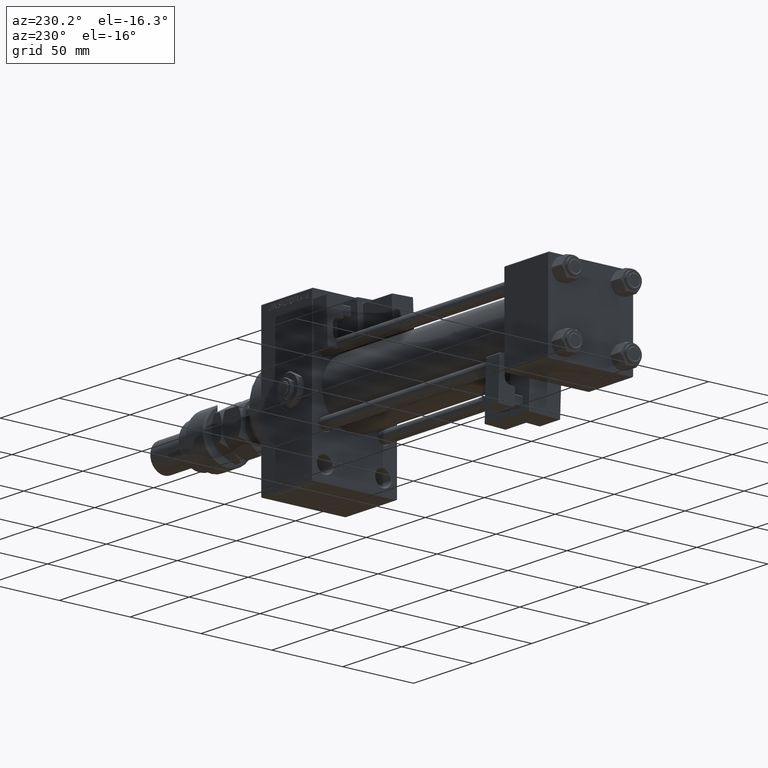
[diagram: clean part render]
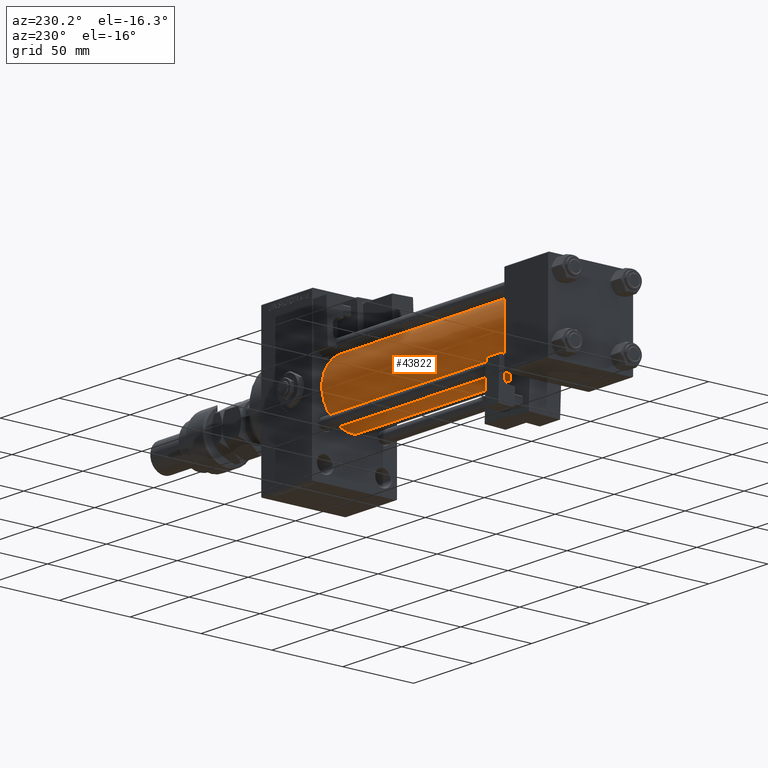
[diagram: same view with one face highlighted and labeled with its STEP entity id]
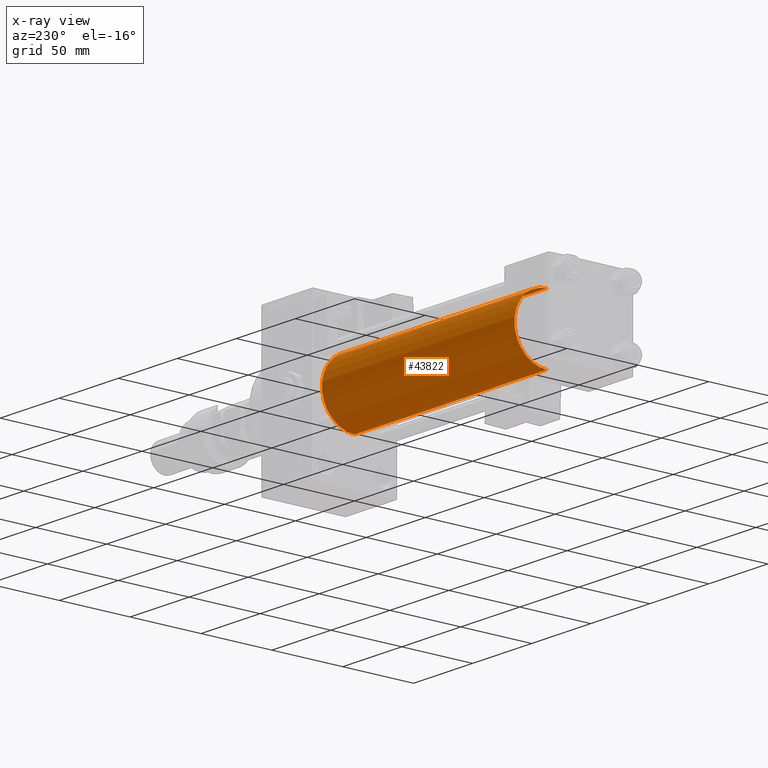
[diagram: x-ray of the same camera — body ghosted, the highlighted face saturated]
A machine part, auxiliary view. The second image highlights one B-rep face of the part: STEP entity #43822.
The next image is the same camera in x-ray: the body ghosted, the highlighted face saturated — about 0% of this face is hidden behind the body in this view.
In plain terms, the highlighted cylindrical surface (partial cylindrical patch) has radius 23 mm, axis along (-1, -0, -0).
Its self-contained STEP definition (entity closure, byte-faithful):
#299 = DIRECTION ( 'NONE',  ( 1.000000000000000000, 0.000000000000000000, 0.000000000000000000 ) ) ;
#700 = LINE ( 'NONE', #25875, #25865 ) ;
#879 = EDGE_CURVE ( 'NONE', #9035, #38479, #37683, .T. ) ;
#1359 = DIRECTION ( 'NONE',  ( 0.000000000000000000, 0.000000000000000000, -1.000000000000000000 ) ) ;
#3482 = AXIS2_PLACEMENT_3D ( 'NONE', #38828, #299, #1359 ) ;
#3650 = ORIENTED_EDGE ( 'NONE', *, *, #16435, .T. ) ;
#5085 = CARTESIAN_POINT ( 'NONE',  ( 37.00000000000000711, 2.146024240737016609E-16, -23.00000000000000000 ) ) ;
#5581 = ORIENTED_EDGE ( 'NONE', *, *, #29843, .F. ) ;
#5807 = CYLINDRICAL_SURFACE ( 'NONE', #45225, 23.00000000000000000 ) ;
#9035 = VERTEX_POINT ( 'NONE', #52659 ) ;
#9699 = CARTESIAN_POINT ( 'NONE',  ( 37.00000000000000711, -2.602085213965210642E-15, 23.00000000000000000 ) ) ;
#11944 = EDGE_LOOP ( 'NONE', ( #5581, #3650, #53807, #27750 ) ) ;
#11993 = DIRECTION ( 'NONE',  ( -1.000000000000000000, -0.000000000000000000, -0.000000000000000000 ) ) ;
#14529 = EDGE_CURVE ( 'NONE', #30364, #38479, #37117, .T. ) ;
#15777 = DIRECTION ( 'NONE',  ( 1.000000000000000000, -0.000000000000000000, 0.000000000000000000 ) ) ;
#16435 = EDGE_CURVE ( 'NONE', #45406, #30364, #700, .T. ) ;
#17397 = DIRECTION ( 'NONE',  ( -1.000000000000000000, -0.000000000000000000, -0.000000000000000000 ) ) ;
#19199 = CARTESIAN_POINT ( 'NONE',  ( 200.0000000000000000, -2.602085213965210642E-15, 0.000000000000000000 ) ) ;
#22508 = DIRECTION ( 'NONE',  ( 0.000000000000000000, 0.000000000000000000, 1.000000000000000000 ) ) ;
#24066 = AXIS2_PLACEMENT_3D ( 'NONE', #52938, #15777, #44214 ) ;
#25865 = VECTOR ( 'NONE', #17397, 1000.000000000000000 ) ;
#25875 = CARTESIAN_POINT ( 'NONE',  ( 200.0000000000000000, 2.146024240737016609E-16, -23.00000000000000000 ) ) ;
#27750 = ORIENTED_EDGE ( 'NONE', *, *, #879, .F. ) ;
#29843 = EDGE_CURVE ( 'NONE', #45406, #9035, #42746, .T. ) ;
#30364 = VERTEX_POINT ( 'NONE', #5085 ) ;
#35870 = DIRECTION ( 'NONE',  ( -1.000000000000000000, -0.000000000000000000, -0.000000000000000000 ) ) ;
#37117 = CIRCLE ( 'NONE', #24066, 23.00000000000000000 ) ;
#37683 = LINE ( 'NONE', #37941, #44239 ) ;
#37941 = CARTESIAN_POINT ( 'NONE',  ( 200.0000000000000000, -2.602085213965210642E-15, 23.00000000000000000 ) ) ;
#38277 = CARTESIAN_POINT ( 'NONE',  ( 200.0000000000000000, 2.146024240737016609E-16, -23.00000000000000000 ) ) ;
#38479 = VERTEX_POINT ( 'NONE', #9699 ) ;
#38828 = CARTESIAN_POINT ( 'NONE',  ( 200.0000000000000000, -2.602085213965210642E-15, 0.000000000000000000 ) ) ;
#42746 = CIRCLE ( 'NONE', #3482, 23.00000000000000000 ) ;
#43261 = FACE_OUTER_BOUND ( 'NONE', #11944, .T. ) ;
#43822 = ADVANCED_FACE ( 'NONE', ( #43261 ), #5807, .T. ) ;
#44214 = DIRECTION ( 'NONE',  ( 0.000000000000000000, 0.000000000000000000, 1.000000000000000000 ) ) ;
#44239 = VECTOR ( 'NONE', #11993, 1000.000000000000000 ) ;
#45225 = AXIS2_PLACEMENT_3D ( 'NONE', #19199, #35870, #22508 ) ;
#45406 = VERTEX_POINT ( 'NONE', #38277 ) ;
#52659 = CARTESIAN_POINT ( 'NONE',  ( 200.0000000000000000, -2.602085213965210642E-15, 23.00000000000000000 ) ) ;
#52938 = CARTESIAN_POINT ( 'NONE',  ( 37.00000000000000711, -2.602085213965210642E-15, 0.000000000000000000 ) ) ;
#53807 = ORIENTED_EDGE ( 'NONE', *, *, #14529, .T. ) ;